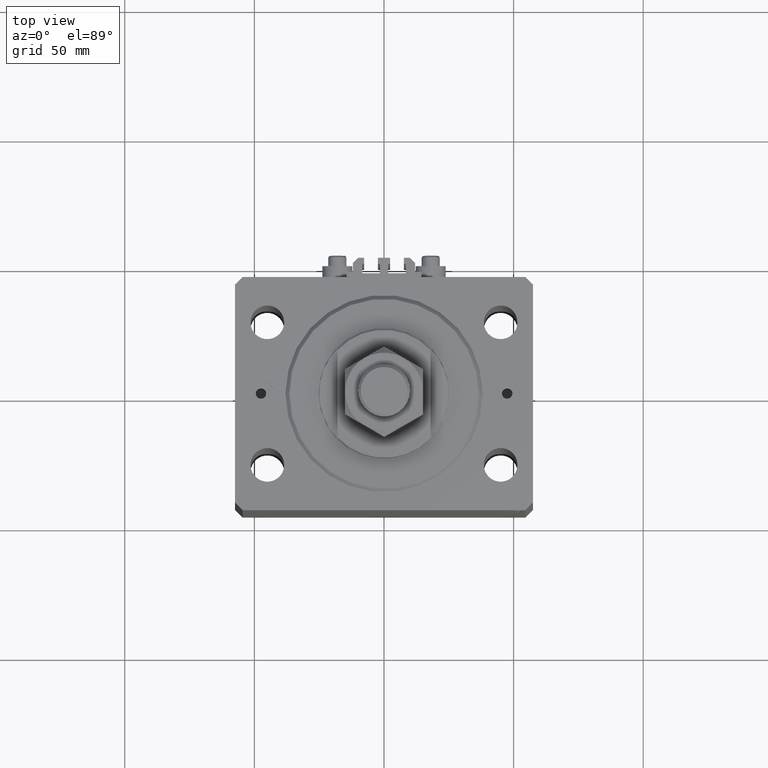
[diagram: clean part render]
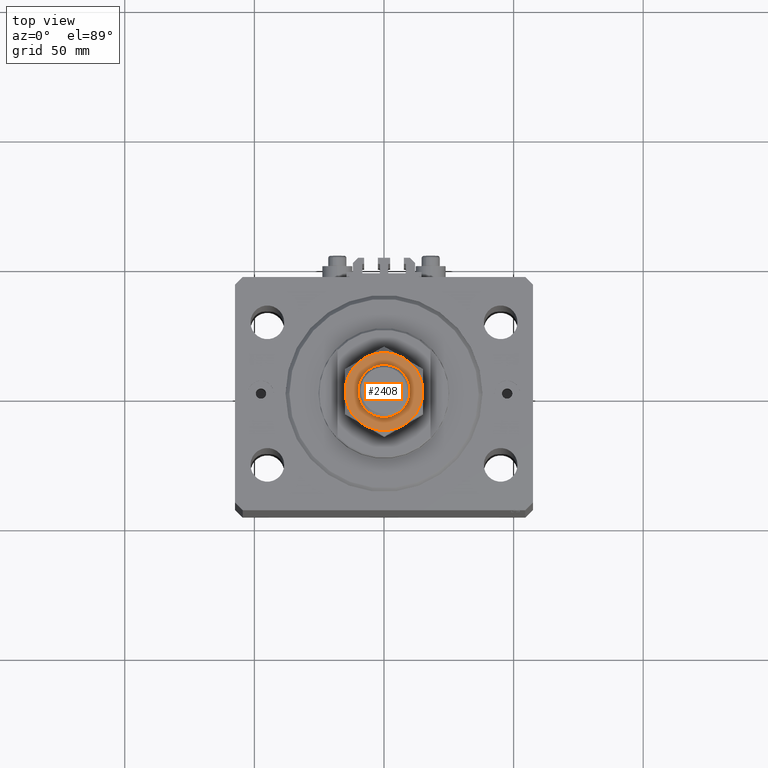
[diagram: same view with one face highlighted and labeled with its STEP entity id]
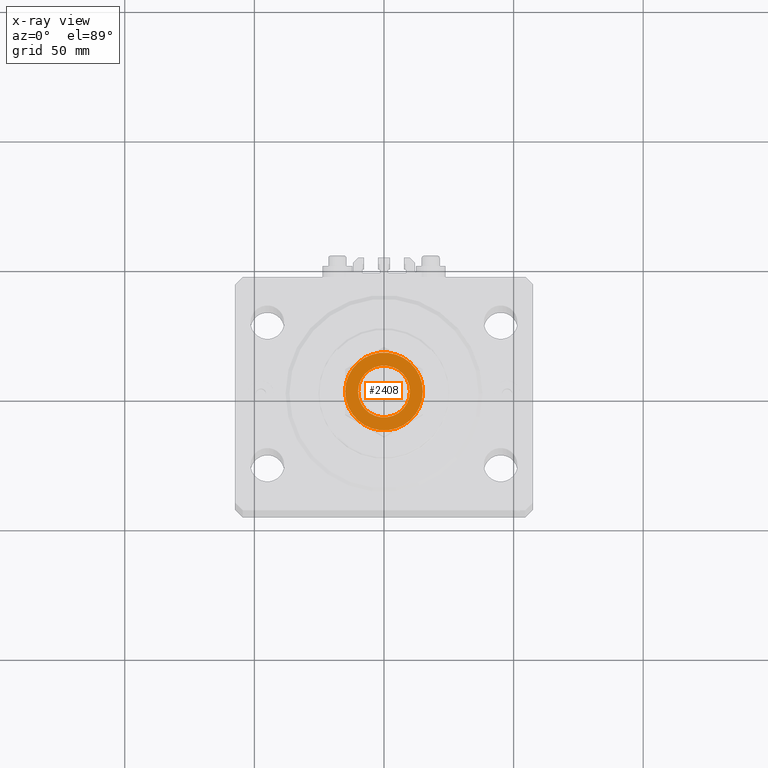
[diagram: x-ray of the same camera — body ghosted, the highlighted face saturated]
A machine part, top view. The second image highlights one B-rep face of the part: STEP entity #2408.
The next image is the same camera in x-ray: the body ghosted, the highlighted face saturated — about 0% of this face is hidden behind the body in this view.
In plain terms, the highlighted planar face has unit normal (0, 0, 1).
Its self-contained STEP definition (entity closure, byte-faithful):
#44 = CARTESIAN_POINT ( 'NONE',  ( 0.000000000000000000, 0.000000000000000000, 25.00000000000000000 ) ) ;
#599 = EDGE_CURVE ( 'NONE', #22600, #20008, #25903, .T. ) ;
#707 = AXIS2_PLACEMENT_3D ( 'NONE', #11644, #30634, #26935 ) ;
#2191 = EDGE_CURVE ( 'NONE', #20008, #17196, #2266, .T. ) ;
#2266 = CIRCLE ( 'NONE', #29836, 14.99999999999999645 ) ;
#2408 = ADVANCED_FACE ( 'NONE', ( #19047, #22988 ), #22748, .T. ) ;
#3102 = DIRECTION ( 'NONE',  ( 0.000000000000000000, -0.000000000000000000, 1.000000000000000000 ) ) ;
#4243 = CARTESIAN_POINT ( 'NONE',  ( 0.000000000000000000, 0.000000000000000000, 25.00000000000000000 ) ) ;
#4933 = CARTESIAN_POINT ( 'NONE',  ( -7.500000000000000000, 12.99038105676657651, 25.00000000000000000 ) ) ;
#5792 = AXIS2_PLACEMENT_3D ( 'NONE', #46130, #35004, #45649 ) ;
#6813 = VERTEX_POINT ( 'NONE', #31269 ) ;
#7406 = CIRCLE ( 'NONE', #43724, 9.999999999999998224 ) ;
#7698 = DIRECTION ( 'NONE',  ( -0.000000000000000000, 0.000000000000000000, -1.000000000000000000 ) ) ;
#9112 = VERTEX_POINT ( 'NONE', #35369 ) ;
#9630 = CARTESIAN_POINT ( 'NONE',  ( -14.99999999999999645, 0.000000000000000000, 25.00000000000000000 ) ) ;
#9768 = ORIENTED_EDGE ( 'NONE', *, *, #2191, .T. ) ;
#9930 = CARTESIAN_POINT ( 'NONE',  ( 0.000000000000000000, 0.000000000000000000, 25.00000000000000000 ) ) ;
#10880 = VERTEX_POINT ( 'NONE', #19833 ) ;
#11644 = CARTESIAN_POINT ( 'NONE',  ( 0.000000000000000000, 0.000000000000000000, 25.00000000000000000 ) ) ;
#11841 = EDGE_CURVE ( 'NONE', #10880, #22600, #14306, .T. ) ;
#12022 = ORIENTED_EDGE ( 'NONE', *, *, #11841, .T. ) ;
#12892 = DIRECTION ( 'NONE',  ( 0.000000000000000000, 0.000000000000000000, 1.000000000000000000 ) ) ;
#14046 = ORIENTED_EDGE ( 'NONE', *, *, #26668, .T. ) ;
#14306 = CIRCLE ( 'NONE', #46630, 14.99999999999999645 ) ;
#16024 = EDGE_CURVE ( 'NONE', #9112, #16500, #43717, .T. ) ;
#16500 = VERTEX_POINT ( 'NONE', #39631 ) ;
#17196 = VERTEX_POINT ( 'NONE', #20361 ) ;
#17377 = ORIENTED_EDGE ( 'NONE', *, *, #599, .T. ) ;
#17454 = EDGE_LOOP ( 'NONE', ( #30755, #18488 ) ) ;
#18488 = ORIENTED_EDGE ( 'NONE', *, *, #16024, .T. ) ;
#19025 = CARTESIAN_POINT ( 'NONE',  ( 7.500000000000001776, -12.99038105676657473, 25.00000000000000000 ) ) ;
#19047 = FACE_BOUND ( 'NONE', #17454, .T. ) ;
#19833 = CARTESIAN_POINT ( 'NONE',  ( 7.499999999999998224, 12.99038105676657651, 25.00000000000000000 ) ) ;
#20008 = VERTEX_POINT ( 'NONE', #9630 ) ;
#20310 = DIRECTION ( 'NONE',  ( 1.000000000000000000, 0.000000000000000000, 0.000000000000000000 ) ) ;
#20361 = CARTESIAN_POINT ( 'NONE',  ( -7.500000000000000888, -12.99038105676657828, 25.00000000000000000 ) ) ;
#20860 = CIRCLE ( 'NONE', #27150, 14.99999999999999645 ) ;
#21212 = DIRECTION ( 'NONE',  ( 0.000000000000000000, -0.000000000000000000, 1.000000000000000000 ) ) ;
#22415 = AXIS2_PLACEMENT_3D ( 'NONE', #34744, #46366, #38217 ) ;
#22600 = VERTEX_POINT ( 'NONE', #4933 ) ;
#22748 = PLANE ( 'NONE',  #707 ) ;
#22988 = FACE_OUTER_BOUND ( 'NONE', #46239, .T. ) ;
#24156 = ORIENTED_EDGE ( 'NONE', *, *, #25912, .T. ) ;
#25190 = CIRCLE ( 'NONE', #29116, 14.99999999999999645 ) ;
#25816 = CARTESIAN_POINT ( 'NONE',  ( 0.000000000000000000, 0.000000000000000000, 25.00000000000000000 ) ) ;
#25903 = CIRCLE ( 'NONE', #40887, 14.99999999999999645 ) ;
#25912 = EDGE_CURVE ( 'NONE', #28711, #6813, #20860, .T. ) ;
#26668 = EDGE_CURVE ( 'NONE', #6813, #10880, #25190, .T. ) ;
#26935 = DIRECTION ( 'NONE',  ( 1.000000000000000000, 0.000000000000000000, -0.000000000000000000 ) ) ;
#27150 = AXIS2_PLACEMENT_3D ( 'NONE', #47891, #21212, #47149 ) ;
#27726 = DIRECTION ( 'NONE',  ( 1.000000000000000000, 0.000000000000000000, 0.000000000000000000 ) ) ;
#27848 = CIRCLE ( 'NONE', #5792, 14.99999999999999645 ) ;
#28711 = VERTEX_POINT ( 'NONE', #19025 ) ;
#29116 = AXIS2_PLACEMENT_3D ( 'NONE', #9930, #12892, #20310 ) ;
#29836 = AXIS2_PLACEMENT_3D ( 'NONE', #31928, #39106, #27726 ) ;
#30634 = DIRECTION ( 'NONE',  ( 0.000000000000000000, -0.000000000000000000, 1.000000000000000000 ) ) ;
#30755 = ORIENTED_EDGE ( 'NONE', *, *, #40350, .T. ) ;
#31269 = CARTESIAN_POINT ( 'NONE',  ( 14.99999999999999645, 1.502314598737159426E-15, 25.00000000000000000 ) ) ;
#31928 = CARTESIAN_POINT ( 'NONE',  ( 0.000000000000000000, 0.000000000000000000, 25.00000000000000000 ) ) ;
#32811 = ORIENTED_EDGE ( 'NONE', *, *, #38553, .T. ) ;
#34744 = CARTESIAN_POINT ( 'NONE',  ( 0.000000000000000000, 0.000000000000000000, 25.00000000000000000 ) ) ;
#35004 = DIRECTION ( 'NONE',  ( 0.000000000000000000, -0.000000000000000000, 1.000000000000000000 ) ) ;
#35369 = CARTESIAN_POINT ( 'NONE',  ( -9.999999999999998224, 1.224646799147353059E-15, 25.00000000000000000 ) ) ;
#38217 = DIRECTION ( 'NONE',  ( 1.000000000000000000, 0.000000000000000000, 0.000000000000000000 ) ) ;
#38553 = EDGE_CURVE ( 'NONE', #17196, #28711, #27848, .T. ) ;
#39106 = DIRECTION ( 'NONE',  ( 0.000000000000000000, -0.000000000000000000, 1.000000000000000000 ) ) ;
#39631 = CARTESIAN_POINT ( 'NONE',  ( 9.999999999999998224, 0.000000000000000000, 25.00000000000000000 ) ) ;
#40350 = EDGE_CURVE ( 'NONE', #16500, #9112, #7406, .T. ) ;
#40877 = DIRECTION ( 'NONE',  ( 1.000000000000000000, 0.000000000000000000, 0.000000000000000000 ) ) ;
#40887 = AXIS2_PLACEMENT_3D ( 'NONE', #44, #44976, #45466 ) ;
#43717 = CIRCLE ( 'NONE', #22415, 9.999999999999998224 ) ;
#43724 = AXIS2_PLACEMENT_3D ( 'NONE', #4243, #7698, #48713 ) ;
#44976 = DIRECTION ( 'NONE',  ( 0.000000000000000000, -0.000000000000000000, 1.000000000000000000 ) ) ;
#45466 = DIRECTION ( 'NONE',  ( 1.000000000000000000, 0.000000000000000000, 0.000000000000000000 ) ) ;
#45649 = DIRECTION ( 'NONE',  ( 1.000000000000000000, 0.000000000000000000, 0.000000000000000000 ) ) ;
#46130 = CARTESIAN_POINT ( 'NONE',  ( 0.000000000000000000, 0.000000000000000000, 25.00000000000000000 ) ) ;
#46239 = EDGE_LOOP ( 'NONE', ( #24156, #14046, #12022, #17377, #9768, #32811 ) ) ;
#46366 = DIRECTION ( 'NONE',  ( -0.000000000000000000, 0.000000000000000000, -1.000000000000000000 ) ) ;
#46630 = AXIS2_PLACEMENT_3D ( 'NONE', #25816, #3102, #40877 ) ;
#47149 = DIRECTION ( 'NONE',  ( 1.000000000000000000, 0.000000000000000000, 0.000000000000000000 ) ) ;
#47891 = CARTESIAN_POINT ( 'NONE',  ( 0.000000000000000000, 0.000000000000000000, 25.00000000000000000 ) ) ;
#48713 = DIRECTION ( 'NONE',  ( 1.000000000000000000, 0.000000000000000000, 0.000000000000000000 ) ) ;